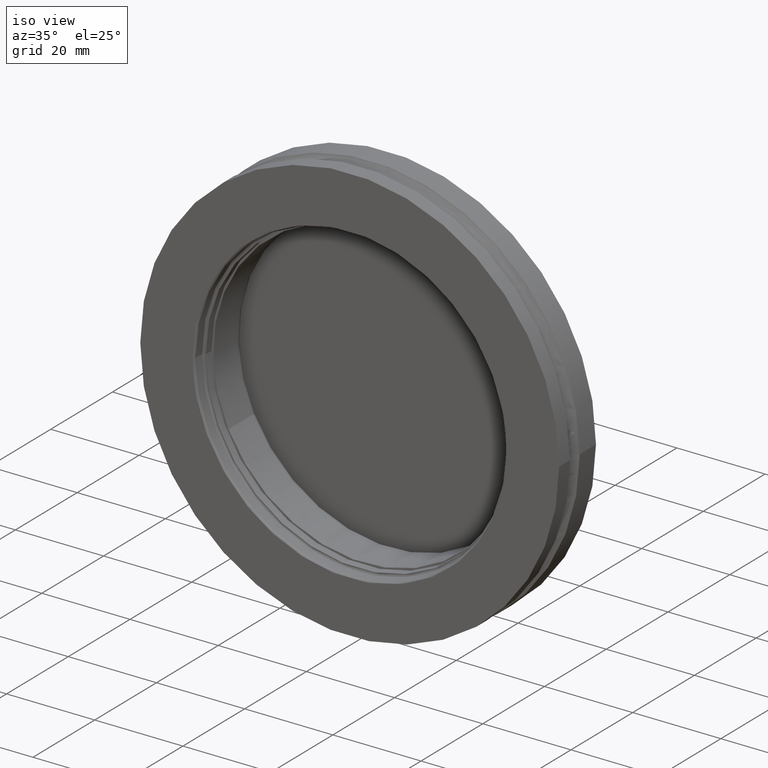
[diagram: clean part render]
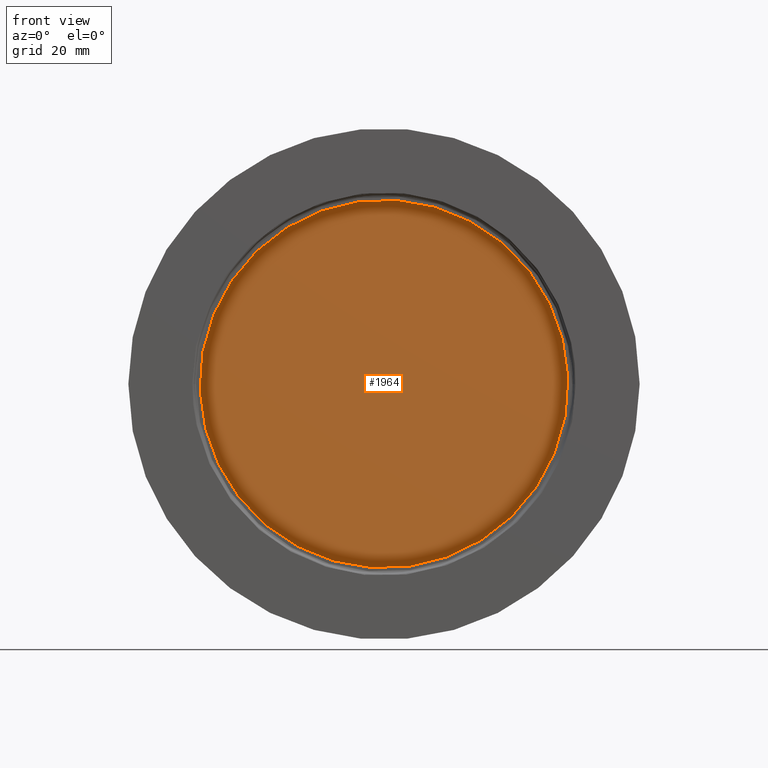
[diagram: tour spotlight — one face highlighted and labeled with its STEP entity id]
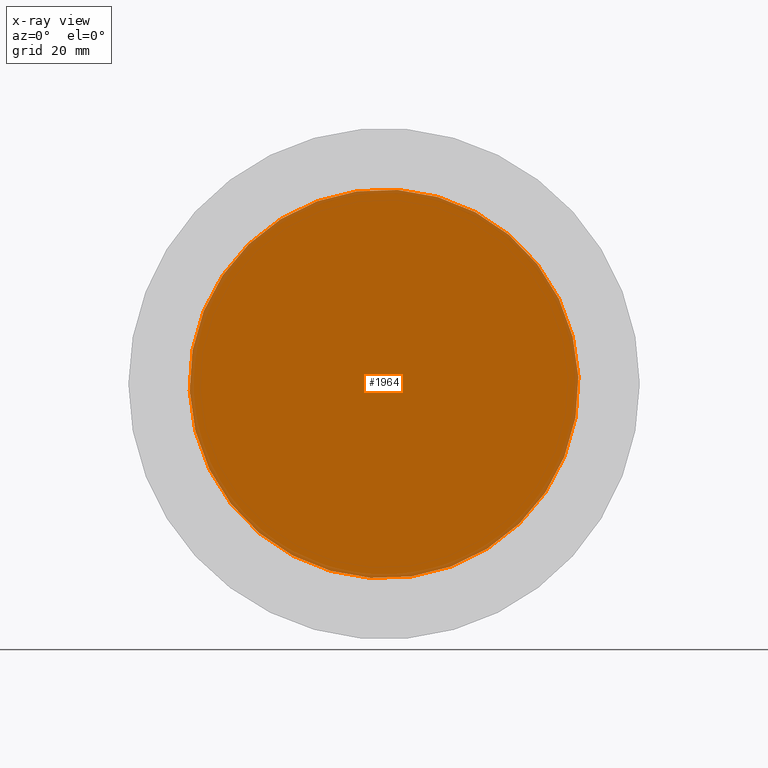
[diagram: x-ray of the same camera — body ghosted, this tour face saturated]
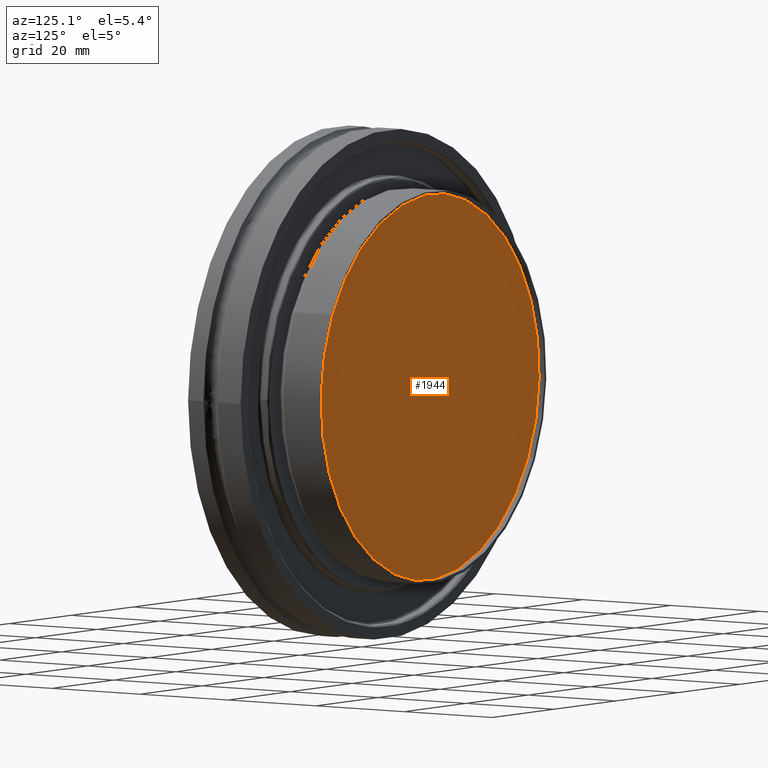
[diagram: tour spotlight — one face highlighted and labeled with its STEP entity id]
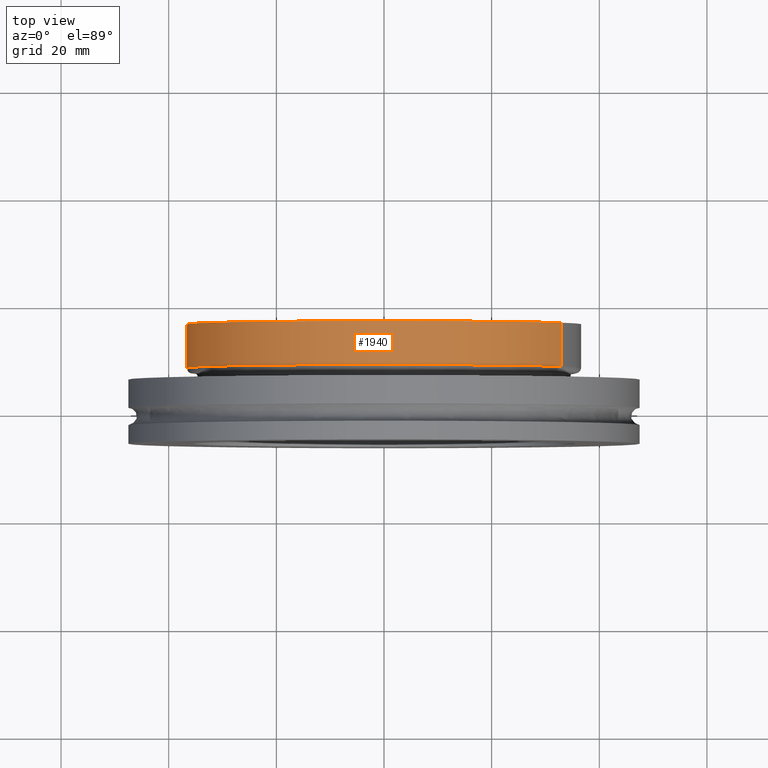
[diagram: tour spotlight — one face highlighted and labeled with its STEP entity id]
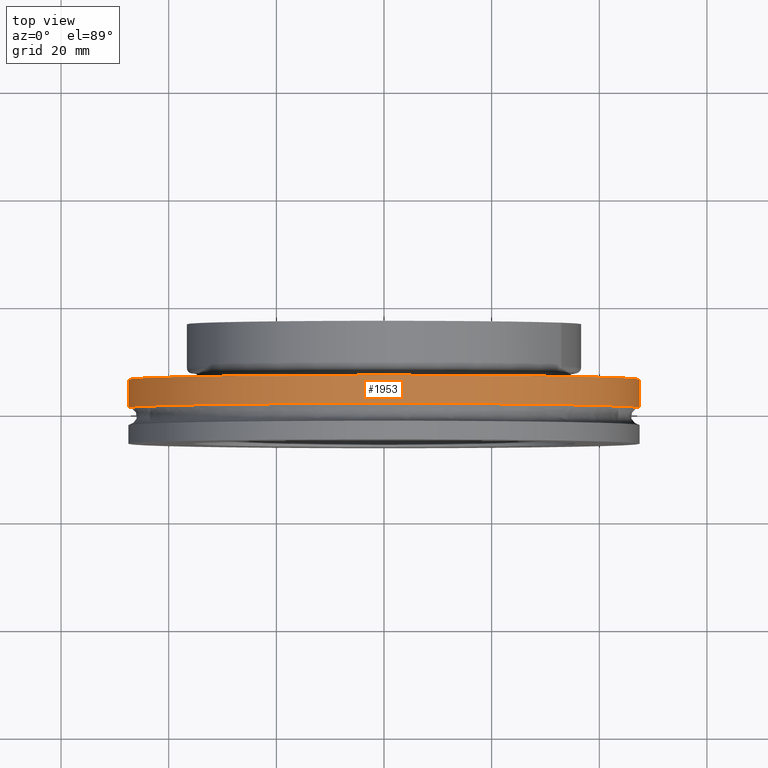
[diagram: tour spotlight — one face highlighted and labeled with its STEP entity id]
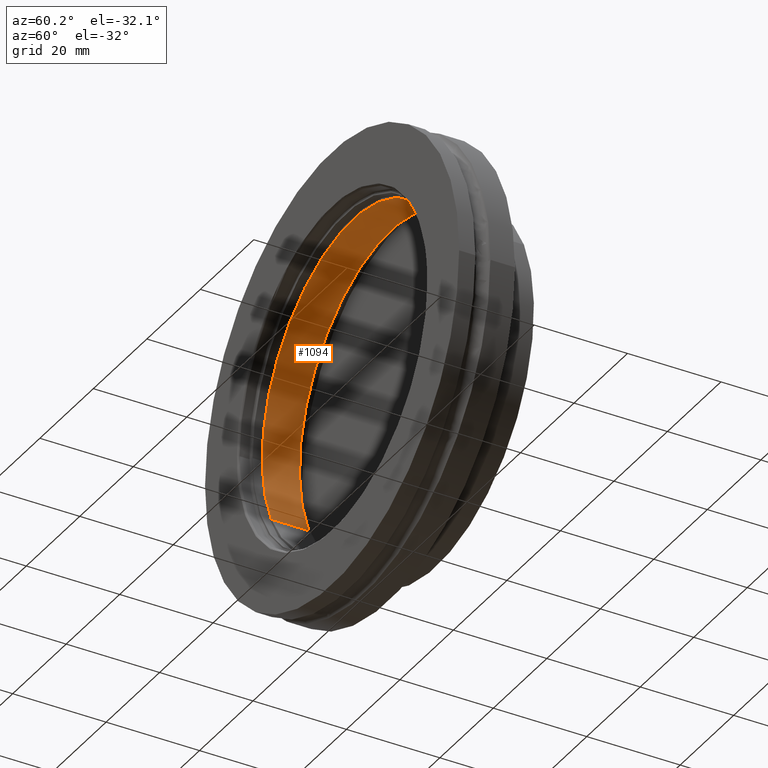
[diagram: tour spotlight — one face highlighted and labeled with its STEP entity id]
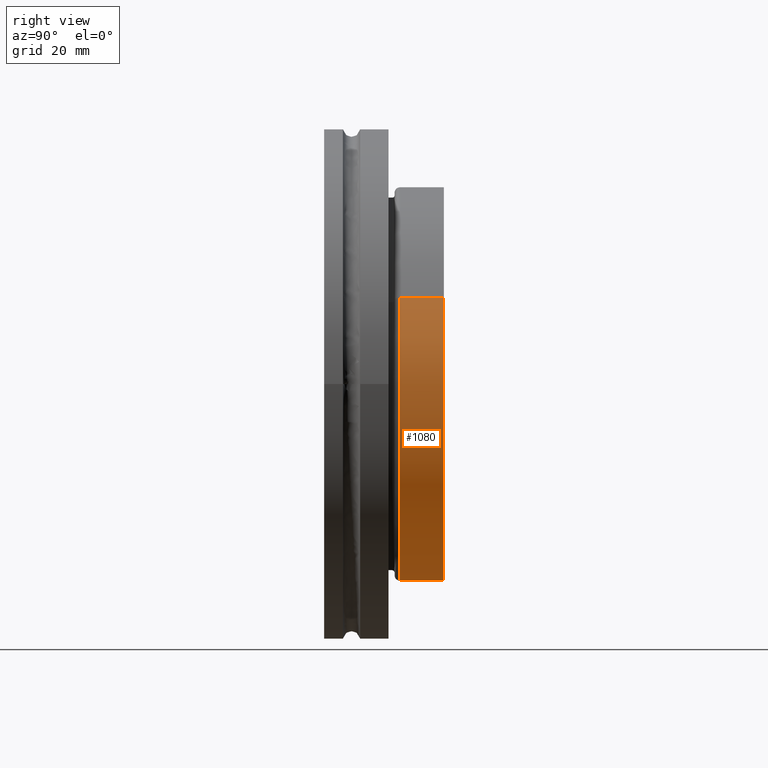
[diagram: tour spotlight — one face highlighted and labeled with its STEP entity id]
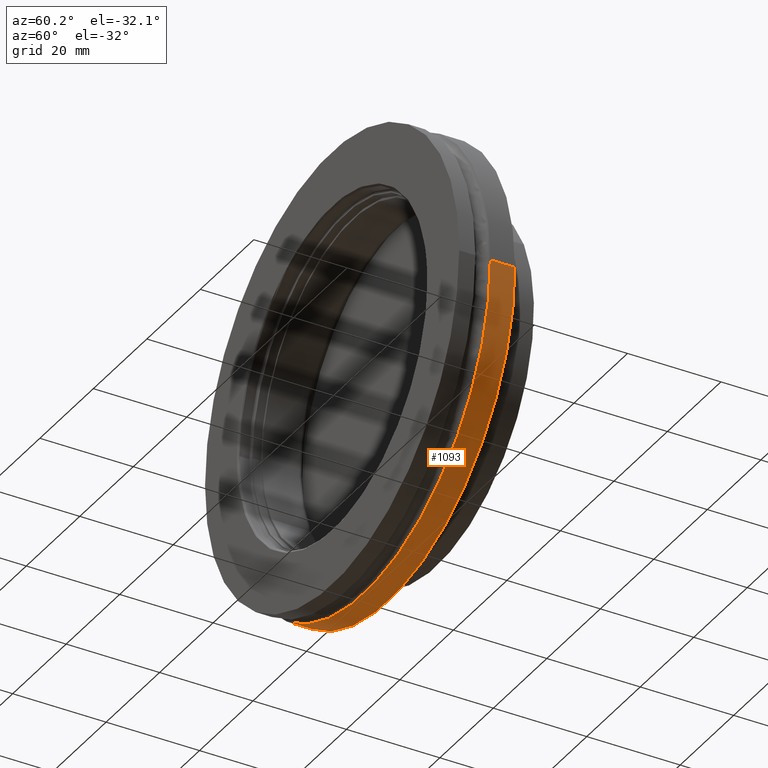
[diagram: tour spotlight — one face highlighted and labeled with its STEP entity id]
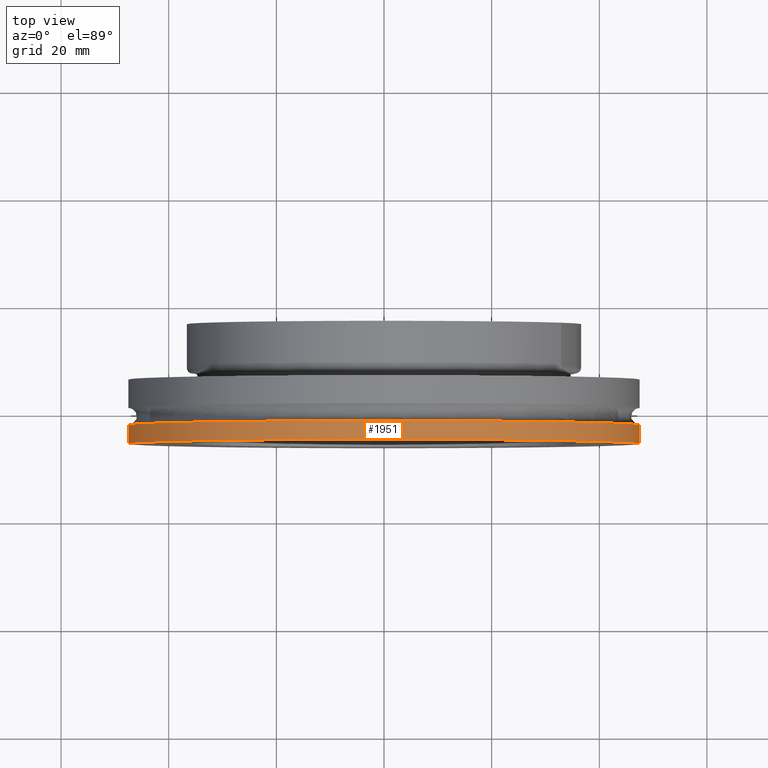
[diagram: tour spotlight — one face highlighted and labeled with its STEP entity id]
A machine part: a face-by-face anatomy tour. The part has 55 B-rep faces; the first image is the clean iso view, then the 8 largest visible faces are spotlighted one at a time (largest first), each with its STEP entity span.

Face 1 — front view, entity #1964. An x-ray twin of the same camera follows (body ghosted, this face saturated) — the face is partly hidden behind the body. In plain terms, the highlighted planar face has unit normal (0, 1, -0).
Definition (entity closure, byte-faithful):
#31 = AXIS2_PLACEMENT_3D ( 'NONE', #1228, #1223, #1222 ) ;
#72 = FACE_OUTER_BOUND ( 'NONE', #510, .T. ) ;
#226 = CIRCLE ( 'NONE', #616, 1.422500000000000300 ) ;
#263 = CIRCLE ( 'NONE', #649, 1.422500000000000300 ) ;
#415 = ORIENTED_EDGE ( 'NONE', *, *, #701, .F. ) ;
#416 = ORIENTED_EDGE ( 'NONE', *, *, #655, .F. ) ;
#510 = EDGE_LOOP ( 'NONE', ( #415, #416 ) ) ;
#616 = AXIS2_PLACEMENT_3D ( 'NONE', #1525, #1643, #1524 ) ;
#649 = AXIS2_PLACEMENT_3D ( 'NONE', #781, #780, #779 ) ;
#655 = EDGE_CURVE ( 'NONE', #1993, #1992, #263, .T. ) ;
#701 = EDGE_CURVE ( 'NONE', #1992, #1993, #226, .T. ) ;
#779 = DIRECTION ( 'NONE',  ( 0.8985227839722367300, -9.602277657870869900E-017, 0.4389268807931240900 ) ) ;
#780 = DIRECTION ( 'NONE',  ( 1.224646799147349000E-016, 1.000000000000000000, -7.482242047915947100E-032 ) ) ;
#781 = CARTESIAN_POINT ( 'NONE',  ( 5.424866172229440700E-018, 0.3400000000000028000, 1.708443747142269700E-019 ) ) ;
#1185 = CARTESIAN_POINT ( 'NONE',  ( 1.278148660200507000, 0.3400000000000026300, 0.6243734879282190100 ) ) ;
#1186 = CARTESIAN_POINT ( 'NONE',  ( -1.278148660200506800, 0.3400000000000029100, -0.6243734879282190100 ) ) ;
#1222 = DIRECTION ( 'NONE',  ( 0.9997490967553430700, -1.224339531291883900E-016, 0.02239963251652742800 ) ) ;
#1223 = DIRECTION ( 'NONE',  ( 1.224646799147348800E-016, 1.000000000000000000, -7.511126783110222000E-032 ) ) ;
#1225 = PLANE ( 'NONE',  #31 ) ;
#1228 = CARTESIAN_POINT ( 'NONE',  ( 5.424866172229440700E-018, 0.3400000000000028000, 1.708443747142269700E-019 ) ) ;
#1524 = DIRECTION ( 'NONE',  ( 0.8985227839722367300, -9.602277657870869900E-017, 0.4389268807931240900 ) ) ;
#1525 = CARTESIAN_POINT ( 'NONE',  ( 5.424866172229440700E-018, 0.3400000000000028000, 1.708443747142269700E-019 ) ) ;
#1643 = DIRECTION ( 'NONE',  ( 1.224646799147349000E-016, 1.000000000000000000, -7.482242047915947100E-032 ) ) ;
#1964 = ADVANCED_FACE ( 'NONE', ( #72 ), #1225, .F. ) ;
#1992 = VERTEX_POINT ( 'NONE', #1186 ) ;
#1993 = VERTEX_POINT ( 'NONE', #1185 ) ;

Face 2 — auxiliary view, entity #1944. In plain terms, the highlighted planar face has unit normal (0, 1, -0).
Definition (entity closure, byte-faithful):
#54 = AXIS2_PLACEMENT_3D ( 'NONE', #1433, #1419, #1418 ) ;
#98 = FACE_OUTER_BOUND ( 'NONE', #450, .T. ) ;
#162 = CIRCLE ( 'NONE', #591, 1.422500000000000300 ) ;
#176 = CIRCLE ( 'NONE', #598, 1.422500000000000300 ) ;
#382 = ORIENTED_EDGE ( 'NONE', *, *, #736, .T. ) ;
#383 = ORIENTED_EDGE ( 'NONE', *, *, #744, .T. ) ;
#450 = EDGE_LOOP ( 'NONE', ( #382, #383 ) ) ;
#470 = VERTEX_POINT ( 'NONE', #941 ) ;
#591 = AXIS2_PLACEMENT_3D ( 'NONE', #1904, #1903, #1902 ) ;
#598 = AXIS2_PLACEMENT_3D ( 'NONE', #1923, #1922, #1921 ) ;
#736 = EDGE_CURVE ( 'NONE', #2004, #470, #176, .T. ) ;
#744 = EDGE_CURVE ( 'NONE', #470, #2004, #162, .T. ) ;
#941 = CARTESIAN_POINT ( 'NONE',  ( 1.278148660200507000, 0.5900000000000024100, 0.6243734879282190100 ) ) ;
#1174 = CARTESIAN_POINT ( 'NONE',  ( -1.278148660200506800, 0.5900000000000027400, -0.6243734879282190100 ) ) ;
#1418 = DIRECTION ( 'NONE',  ( 0.9997490967553430700, -1.224339531291883900E-016, 0.02239963251652742800 ) ) ;
#1419 = DIRECTION ( 'NONE',  ( 1.224646799147348800E-016, 1.000000000000000000, -7.511126783110222000E-032 ) ) ;
#1424 = PLANE ( 'NONE',  #54 ) ;
#1433 = CARTESIAN_POINT ( 'NONE',  ( 3.604103615091316700E-017, 0.5900000000000027400, 1.708443747142080000E-019 ) ) ;
#1902 = DIRECTION ( 'NONE',  ( 0.8985227839722367300, -9.602277657870869900E-017, 0.4389268807931240900 ) ) ;
#1903 = DIRECTION ( 'NONE',  ( 1.224646799147349000E-016, 1.000000000000000000, -7.482242047915947100E-032 ) ) ;
#1904 = CARTESIAN_POINT ( 'NONE',  ( 3.604103615091314200E-017, 0.5900000000000026300, 1.708443747142080000E-019 ) ) ;
#1921 = DIRECTION ( 'NONE',  ( 0.8985227839722367300, -9.602277657870869900E-017, 0.4389268807931240900 ) ) ;
#1922 = DIRECTION ( 'NONE',  ( 1.224646799147349000E-016, 1.000000000000000000, -7.482242047915947100E-032 ) ) ;
#1923 = CARTESIAN_POINT ( 'NONE',  ( 3.604103615091314200E-017, 0.5900000000000026300, 1.708443747142080000E-019 ) ) ;
#1944 = ADVANCED_FACE ( 'NONE', ( #98 ), #1424, .T. ) ;
#2004 = VERTEX_POINT ( 'NONE', #1174 ) ;

Face 3 — top view, entity #1940. In plain terms, the highlighted cylindrical surface (partial cylindrical patch) has radius 36.6395 mm, axis along (-0, -1, 0).
Definition (entity closure, byte-faithful):
#27 = AXIS2_PLACEMENT_3D ( 'NONE', #1438, #1439, #1443 ) ;
#104 = CYLINDRICAL_SURFACE ( 'NONE', #27, 1.442500000000000300 ) ;
#116 = FACE_OUTER_BOUND ( 'NONE', #458, .T. ) ;
#160 = CIRCLE ( 'NONE', #589, 1.442500000000000300 ) ;
#161 = CIRCLE ( 'NONE', #590, 1.442500000000000300 ) ;
#177 = VECTOR ( 'NONE', #1930, 39.37007874015748100 ) ;
#179 = VECTOR ( 'NONE', #1298, 39.37007874015748100 ) ;
#180 = LINE ( 'NONE', #1932, #177 ) ;
#182 = LINE ( 'NONE', #1131, #179 ) ;
#365 = ORIENTED_EDGE ( 'NONE', *, *, #732, .F. ) ;
#366 = ORIENTED_EDGE ( 'NONE', *, *, #745, .T. ) ;
#367 = ORIENTED_EDGE ( 'NONE', *, *, #733, .T. ) ;
#368 = ORIENTED_EDGE ( 'NONE', *, *, #746, .F. ) ;
#458 = EDGE_LOOP ( 'NONE', ( #365, #366, #367, #368 ) ) ;
#589 = AXIS2_PLACEMENT_3D ( 'NONE', #1897, #1896, #1895 ) ;
#590 = AXIS2_PLACEMENT_3D ( 'NONE', #1900, #1899, #1898 ) ;
#732 = EDGE_CURVE ( 'NONE', #1990, #2014, #182, .T. ) ;
#733 = EDGE_CURVE ( 'NONE', #1997, #1996, #180, .T. ) ;
#745 = EDGE_CURVE ( 'NONE', #1990, #1997, #161, .T. ) ;
#746 = EDGE_CURVE ( 'NONE', #2014, #1996, #160, .T. ) ;
#1131 = CARTESIAN_POINT ( 'NONE',  ( 1.296119115879951400, -2.674999999999995800, 0.6331520255440814500 ) ) ;
#1164 = CARTESIAN_POINT ( 'NONE',  ( 1.296119115879951700, 0.3200000000000030600, 0.6331520255440814500 ) ) ;
#1181 = CARTESIAN_POINT ( 'NONE',  ( -1.296119115879951700, 0.6400000000000031200, -0.6331520255440815600 ) ) ;
#1182 = CARTESIAN_POINT ( 'NONE',  ( -1.296119115879951700, 0.3200000000000033400, -0.6331520255440815600 ) ) ;
#1188 = CARTESIAN_POINT ( 'NONE',  ( 1.296119115879951700, 0.6400000000000029000, 0.6331520255440814500 ) ) ;
#1298 = DIRECTION ( 'NONE',  ( -1.224646799147349000E-016, -1.000000000000000000, 7.482242047915948200E-032 ) ) ;
#1438 = CARTESIAN_POINT ( 'NONE',  ( -3.638061437706961500E-016, -2.674999999999995800, 1.708443747144506400E-019 ) ) ;
#1439 = DIRECTION ( 'NONE',  ( -1.224646799147349000E-016, -1.000000000000000000, 7.482242047915948200E-032 ) ) ;
#1443 = DIRECTION ( 'NONE',  ( -0.8985227839722366200, 0.0000000000000000000, -0.4389268807931240300 ) ) ;
#1895 = DIRECTION ( 'NONE',  ( -0.8985227839722366200, 9.469143825526040200E-017, -0.4389268807931240300 ) ) ;
#1896 = DIRECTION ( 'NONE',  ( -1.224646799147349000E-016, -1.000000000000000000, 7.482242047915948200E-032 ) ) ;
#1897 = CARTESIAN_POINT ( 'NONE',  ( 2.975572573934792800E-018, 0.3200000000000032300, 1.708443747142269700E-019 ) ) ;
#1898 = DIRECTION ( 'NONE',  ( -0.8985227839722366200, 9.469143825526040200E-017, -0.4389268807931240300 ) ) ;
#1899 = DIRECTION ( 'NONE',  ( -1.224646799147349000E-016, -1.000000000000000000, 7.482242047915948200E-032 ) ) ;
#1900 = CARTESIAN_POINT ( 'NONE',  ( 4.216427014664993800E-017, 0.6400000000000030100, 1.708443747142042200E-019 ) ) ;
#1930 = DIRECTION ( 'NONE',  ( -1.224646799147349000E-016, -1.000000000000000000, 7.482242047915948200E-032 ) ) ;
#1932 = CARTESIAN_POINT ( 'NONE',  ( -1.296119115879951900, -2.674999999999995800, -0.6331520255440815600 ) ) ;
#1940 = ADVANCED_FACE ( 'NONE', ( #116 ), #104, .T. ) ;
#1990 = VERTEX_POINT ( 'NONE', #1188 ) ;
#1996 = VERTEX_POINT ( 'NONE', #1182 ) ;
#1997 = VERTEX_POINT ( 'NONE', #1181 ) ;
#2014 = VERTEX_POINT ( 'NONE', #1164 ) ;

Face 4 — top view, entity #1953. In plain terms, the highlighted cylindrical surface (partial cylindrical patch) has radius 47.498 mm, axis along (0, 1, 0).
Definition (entity closure, byte-faithful):
#51 = AXIS2_PLACEMENT_3D ( 'NONE', #1325, #1348, #1349 ) ;
#82 = CYLINDRICAL_SURFACE ( 'NONE', #51, 1.870000000000000100 ) ;
#83 = FACE_OUTER_BOUND ( 'NONE', #498, .T. ) ;
#200 = VECTOR ( 'NONE', #1462, 39.37007874015748100 ) ;
#202 = LINE ( 'NONE', #1454, #200 ) ;
#203 = VECTOR ( 'NONE', #1422, 39.37007874015748100 ) ;
#206 = LINE ( 'NONE', #1427, #203 ) ;
#271 = CIRCLE ( 'NONE', #660, 1.870000000000000100 ) ;
#274 = CIRCLE ( 'NONE', #661, 1.870000000000000100 ) ;
#308 = ORIENTED_EDGE ( 'NONE', *, *, #714, .F. ) ;
#309 = ORIENTED_EDGE ( 'NONE', *, *, #567, .T. ) ;
#310 = ORIENTED_EDGE ( 'NONE', *, *, #716, .T. ) ;
#311 = ORIENTED_EDGE ( 'NONE', *, *, #568, .T. ) ;
#485 = VERTEX_POINT ( 'NONE', #840 ) ;
#489 = VERTEX_POINT ( 'NONE', #820 ) ;
#498 = EDGE_LOOP ( 'NONE', ( #308, #309, #310, #311 ) ) ;
#567 = EDGE_CURVE ( 'NONE', #489, #485, #274, .T. ) ;
#568 = EDGE_CURVE ( 'NONE', #2015, #2003, #271, .T. ) ;
#660 = AXIS2_PLACEMENT_3D ( 'NONE', #764, #762, #929 ) ;
#661 = AXIS2_PLACEMENT_3D ( 'NONE', #791, #786, #782 ) ;
#714 = EDGE_CURVE ( 'NONE', #489, #2003, #206, .T. ) ;
#716 = EDGE_CURVE ( 'NONE', #485, #2015, #202, .T. ) ;
#762 = DIRECTION ( 'NONE',  ( -0.0000000000000000000, -1.000000000000000000, -0.0000000000000000000 ) ) ;
#764 = CARTESIAN_POINT ( 'NONE',  ( 0.0000000000000000000, 0.2350000000000000100, 0.0000000000000000000 ) ) ;
#782 = DIRECTION ( 'NONE',  ( 1.000000000000000000, 0.0000000000000000000, 0.0000000000000000000 ) ) ;
#786 = DIRECTION ( 'NONE',  ( 0.0000000000000000000, 1.000000000000000000, 0.0000000000000000000 ) ) ;
#791 = CARTESIAN_POINT ( 'NONE',  ( 0.0000000000000000000, 0.02799999999999994900, 0.0000000000000000000 ) ) ;
#820 = CARTESIAN_POINT ( 'NONE',  ( -1.870000000000000100, 0.02799999999999994900, -2.290089514405550600E-016 ) ) ;
#840 = CARTESIAN_POINT ( 'NONE',  ( 1.870000000000000100, 0.02799999999999994900, 0.0000000000000000000 ) ) ;
#929 = DIRECTION ( 'NONE',  ( 1.000000000000000000, 0.0000000000000000000, 0.0000000000000000000 ) ) ;
#1163 = CARTESIAN_POINT ( 'NONE',  ( 1.870000000000000100, 0.2350000000000000100, 0.0000000000000000000 ) ) ;
#1175 = CARTESIAN_POINT ( 'NONE',  ( -1.870000000000000100, 0.2350000000000000100, -2.290089514405550600E-016 ) ) ;
#1325 = CARTESIAN_POINT ( 'NONE',  ( 0.0000000000000000000, 0.2350000000000000100, 0.0000000000000000000 ) ) ;
#1348 = DIRECTION ( 'NONE',  ( 0.0000000000000000000, 1.000000000000000000, 0.0000000000000000000 ) ) ;
#1349 = DIRECTION ( 'NONE',  ( 1.000000000000000000, 0.0000000000000000000, 0.0000000000000000000 ) ) ;
#1422 = DIRECTION ( 'NONE',  ( 0.0000000000000000000, 1.000000000000000000, 0.0000000000000000000 ) ) ;
#1427 = CARTESIAN_POINT ( 'NONE',  ( -1.870000000000000100, 0.2350000000000000100, -2.290089514405550600E-016 ) ) ;
#1454 = CARTESIAN_POINT ( 'NONE',  ( 1.870000000000000100, 0.2350000000000000100, 0.0000000000000000000 ) ) ;
#1462 = DIRECTION ( 'NONE',  ( 0.0000000000000000000, 1.000000000000000000, 0.0000000000000000000 ) ) ;
#1953 = ADVANCED_FACE ( 'NONE', ( #83 ), #82, .T. ) ;
#2003 = VERTEX_POINT ( 'NONE', #1175 ) ;
#2015 = VERTEX_POINT ( 'NONE', #1163 ) ;

Face 5 — auxiliary view, entity #1094. In plain terms, the highlighted cylindrical surface (partial cylindrical patch) has radius 34.163 mm, axis along (-0, -1, 0).
Definition (entity closure, byte-faithful):
#30 = AXIS2_PLACEMENT_3D ( 'NONE', #1535, #1537, #1539 ) ;
#124 = CYLINDRICAL_SURFACE ( 'NONE', #30, 1.345000000000000000 ) ;
#135 = FACE_OUTER_BOUND ( 'NONE', #444, .T. ) ;
#234 = VECTOR ( 'NONE', #2093, 39.37007874015748100 ) ;
#237 = LINE ( 'NONE', #2078, #234 ) ;
#238 = VECTOR ( 'NONE', #2094, 39.37007874015748100 ) ;
#240 = LINE ( 'NONE', #2086, #238 ) ;
#241 = CIRCLE ( 'NONE', #625, 1.345000000000000000 ) ;
#244 = CIRCLE ( 'NONE', #626, 1.345000000000000000 ) ;
#444 = EDGE_LOOP ( 'NONE', ( #554, #555, #556, #557 ) ) ;
#554 = ORIENTED_EDGE ( 'NONE', *, *, #689, .F. ) ;
#555 = ORIENTED_EDGE ( 'NONE', *, *, #690, .T. ) ;
#556 = ORIENTED_EDGE ( 'NONE', *, *, #691, .T. ) ;
#557 = ORIENTED_EDGE ( 'NONE', *, *, #692, .F. ) ;
#625 = AXIS2_PLACEMENT_3D ( 'NONE', #2075, #2074, #2072 ) ;
#626 = AXIS2_PLACEMENT_3D ( 'NONE', #2083, #2082, #2081 ) ;
#689 = EDGE_CURVE ( 'NONE', #1980, #1983, #244, .T. ) ;
#690 = EDGE_CURVE ( 'NONE', #1980, #1987, #240, .T. ) ;
#691 = EDGE_CURVE ( 'NONE', #1987, #1988, #241, .T. ) ;
#692 = EDGE_CURVE ( 'NONE', #1983, #1988, #237, .T. ) ;
#1094 = ADVANCED_FACE ( 'NONE', ( #135 ), #124, .F. ) ;
#1190 = CARTESIAN_POINT ( 'NONE',  ( -1.208513144442658200, -0.05499999999999687800, -0.5903566546667518000 ) ) ;
#1191 = CARTESIAN_POINT ( 'NONE',  ( 1.208513144442658200, -0.05499999999999716900, 0.5903566546667516900 ) ) ;
#1195 = CARTESIAN_POINT ( 'NONE',  ( -1.208513144442658400, 0.2600000000000034500, -0.5903566546667519100 ) ) ;
#1206 = CARTESIAN_POINT ( 'NONE',  ( 1.208513144442658400, 0.2600000000000032300, 0.5903566546667518000 ) ) ;
#1535 = CARTESIAN_POINT ( 'NONE',  ( -3.638061437706961500E-016, -2.674999999999995800, 1.708443747144506400E-019 ) ) ;
#1537 = DIRECTION ( 'NONE',  ( -1.224646799147349000E-016, -1.000000000000000000, 7.482242047915948200E-032 ) ) ;
#1539 = DIRECTION ( 'NONE',  ( -0.8985227839722366200, 0.0000000000000000000, -0.4389268807931240300 ) ) ;
#1980 = VERTEX_POINT ( 'NONE', #1206 ) ;
#1983 = VERTEX_POINT ( 'NONE', #1195 ) ;
#1987 = VERTEX_POINT ( 'NONE', #1191 ) ;
#1988 = VERTEX_POINT ( 'NONE', #1190 ) ;
#2072 = DIRECTION ( 'NONE',  ( -1.000000000000000000, 1.205973789024651500E-016, 0.0000000000000000000 ) ) ;
#2074 = DIRECTION ( 'NONE',  ( -1.224646799147352200E-016, -1.000000000000000000, 0.0000000000000000000 ) ) ;
#2075 = CARTESIAN_POINT ( 'NONE',  ( -6.735557395310073400E-018, -0.05499999999999702300, -0.0000000000000000000 ) ) ;
#2078 = CARTESIAN_POINT ( 'NONE',  ( -1.208513144442658700, -2.674999999999995800, -0.5903566546667518000 ) ) ;
#2081 = DIRECTION ( 'NONE',  ( -0.8985227839722366200, 1.015556874968127600E-016, -0.4389268807931240300 ) ) ;
#2082 = DIRECTION ( 'NONE',  ( -1.224646799147349000E-016, -1.000000000000000000, 7.482242047915948200E-032 ) ) ;
#2083 = CARTESIAN_POINT ( 'NONE',  ( -4.372308220949285500E-018, 0.2600000000000033400, 1.708443747142307500E-019 ) ) ;
#2086 = CARTESIAN_POINT ( 'NONE',  ( 1.208513144442657800, -2.674999999999995800, 0.5903566546667516900 ) ) ;
#2093 = DIRECTION ( 'NONE',  ( -1.224646799147349000E-016, -1.000000000000000000, 7.482242047915948200E-032 ) ) ;
#2094 = DIRECTION ( 'NONE',  ( -1.224646799147349000E-016, -1.000000000000000000, 7.482242047915948200E-032 ) ) ;

Face 6 — right view, entity #1080. In plain terms, the highlighted cylindrical surface (partial cylindrical patch) has radius 36.6395 mm, axis along (-0, -1, 0).
Definition (entity closure, byte-faithful):
#148 = CYLINDRICAL_SURFACE ( 'NONE', #579, 1.442500000000000300 ) ;
#149 = FACE_OUTER_BOUND ( 'NONE', #457, .T. ) ;
#177 = VECTOR ( 'NONE', #1930, 39.37007874015748100 ) ;
#179 = VECTOR ( 'NONE', #1298, 39.37007874015748100 ) ;
#180 = LINE ( 'NONE', #1932, #177 ) ;
#182 = LINE ( 'NONE', #1131, #179 ) ;
#183 = CIRCLE ( 'NONE', #600, 1.442500000000000300 ) ;
#188 = CIRCLE ( 'NONE', #604, 1.442500000000000300 ) ;
#340 = ORIENTED_EDGE ( 'NONE', *, *, #731, .T. ) ;
#342 = ORIENTED_EDGE ( 'NONE', *, *, #732, .T. ) ;
#343 = ORIENTED_EDGE ( 'NONE', *, *, #727, .F. ) ;
#344 = ORIENTED_EDGE ( 'NONE', *, *, #733, .F. ) ;
#457 = EDGE_LOOP ( 'NONE', ( #340, #342, #343, #344 ) ) ;
#579 = AXIS2_PLACEMENT_3D ( 'NONE', #1626, #1629, #1630 ) ;
#600 = AXIS2_PLACEMENT_3D ( 'NONE', #1130, #1936, #1935 ) ;
#604 = AXIS2_PLACEMENT_3D ( 'NONE', #1307, #1306, #1299 ) ;
#727 = EDGE_CURVE ( 'NONE', #1996, #2014, #188, .T. ) ;
#731 = EDGE_CURVE ( 'NONE', #1997, #1990, #183, .T. ) ;
#732 = EDGE_CURVE ( 'NONE', #1990, #2014, #182, .T. ) ;
#733 = EDGE_CURVE ( 'NONE', #1997, #1996, #180, .T. ) ;
#1080 = ADVANCED_FACE ( 'NONE', ( #149 ), #148, .T. ) ;
#1130 = CARTESIAN_POINT ( 'NONE',  ( 4.216427014664993800E-017, 0.6400000000000030100, 1.708443747142042200E-019 ) ) ;
#1131 = CARTESIAN_POINT ( 'NONE',  ( 1.296119115879951400, -2.674999999999995800, 0.6331520255440814500 ) ) ;
#1164 = CARTESIAN_POINT ( 'NONE',  ( 1.296119115879951700, 0.3200000000000030600, 0.6331520255440814500 ) ) ;
#1181 = CARTESIAN_POINT ( 'NONE',  ( -1.296119115879951700, 0.6400000000000031200, -0.6331520255440815600 ) ) ;
#1182 = CARTESIAN_POINT ( 'NONE',  ( -1.296119115879951700, 0.3200000000000033400, -0.6331520255440815600 ) ) ;
#1188 = CARTESIAN_POINT ( 'NONE',  ( 1.296119115879951700, 0.6400000000000029000, 0.6331520255440814500 ) ) ;
#1298 = DIRECTION ( 'NONE',  ( -1.224646799147349000E-016, -1.000000000000000000, 7.482242047915948200E-032 ) ) ;
#1299 = DIRECTION ( 'NONE',  ( -0.8985227839722366200, 9.469143825526040200E-017, -0.4389268807931240300 ) ) ;
#1306 = DIRECTION ( 'NONE',  ( -1.224646799147349000E-016, -1.000000000000000000, 7.482242047915948200E-032 ) ) ;
#1307 = CARTESIAN_POINT ( 'NONE',  ( 2.975572573934792800E-018, 0.3200000000000032300, 1.708443747142269700E-019 ) ) ;
#1626 = CARTESIAN_POINT ( 'NONE',  ( -3.638061437706961500E-016, -2.674999999999995800, 1.708443747144506400E-019 ) ) ;
#1629 = DIRECTION ( 'NONE',  ( -1.224646799147349000E-016, -1.000000000000000000, 7.482242047915948200E-032 ) ) ;
#1630 = DIRECTION ( 'NONE',  ( -0.8985227839722366200, 0.0000000000000000000, -0.4389268807931240300 ) ) ;
#1930 = DIRECTION ( 'NONE',  ( -1.224646799147349000E-016, -1.000000000000000000, 7.482242047915948200E-032 ) ) ;
#1932 = CARTESIAN_POINT ( 'NONE',  ( -1.296119115879951900, -2.674999999999995800, -0.6331520255440815600 ) ) ;
#1935 = DIRECTION ( 'NONE',  ( -0.8985227839722366200, 9.469143825526040200E-017, -0.4389268807931240300 ) ) ;
#1936 = DIRECTION ( 'NONE',  ( -1.224646799147349000E-016, -1.000000000000000000, 7.482242047915948200E-032 ) ) ;
#1990 = VERTEX_POINT ( 'NONE', #1188 ) ;
#1996 = VERTEX_POINT ( 'NONE', #1182 ) ;
#1997 = VERTEX_POINT ( 'NONE', #1181 ) ;
#2014 = VERTEX_POINT ( 'NONE', #1164 ) ;

Face 7 — auxiliary view, entity #1093. In plain terms, the highlighted cylindrical surface (partial cylindrical patch) has radius 47.498 mm, axis along (0, 1, 0).
Definition (entity closure, byte-faithful):
#47 = AXIS2_PLACEMENT_3D ( 'NONE', #1538, #1540, #1542 ) ;
#126 = CYLINDRICAL_SURFACE ( 'NONE', #47, 1.870000000000000100 ) ;
#137 = FACE_OUTER_BOUND ( 'NONE', #435, .T. ) ;
#144 = ORIENTED_EDGE ( 'NONE', *, *, #716, .F. ) ;
#147 = ORIENTED_EDGE ( 'NONE', *, *, #673, .T. ) ;
#200 = VECTOR ( 'NONE', #1462, 39.37007874015748100 ) ;
#202 = LINE ( 'NONE', #1454, #200 ) ;
#203 = VECTOR ( 'NONE', #1422, 39.37007874015748100 ) ;
#204 = CIRCLE ( 'NONE', #611, 1.870000000000000100 ) ;
#206 = LINE ( 'NONE', #1427, #203 ) ;
#253 = CIRCLE ( 'NONE', #639, 1.870000000000000100 ) ;
#381 = ORIENTED_EDGE ( 'NONE', *, *, #714, .T. ) ;
#391 = ORIENTED_EDGE ( 'NONE', *, *, #715, .T. ) ;
#435 = EDGE_LOOP ( 'NONE', ( #147, #381, #391, #144 ) ) ;
#485 = VERTEX_POINT ( 'NONE', #840 ) ;
#489 = VERTEX_POINT ( 'NONE', #820 ) ;
#611 = AXIS2_PLACEMENT_3D ( 'NONE', #1414, #1405, #1407 ) ;
#639 = AXIS2_PLACEMENT_3D ( 'NONE', #2482, #2481, #2480 ) ;
#673 = EDGE_CURVE ( 'NONE', #485, #489, #253, .T. ) ;
#714 = EDGE_CURVE ( 'NONE', #489, #2003, #206, .T. ) ;
#715 = EDGE_CURVE ( 'NONE', #2003, #2015, #204, .T. ) ;
#716 = EDGE_CURVE ( 'NONE', #485, #2015, #202, .T. ) ;
#820 = CARTESIAN_POINT ( 'NONE',  ( -1.870000000000000100, 0.02799999999999994900, -2.290089514405550600E-016 ) ) ;
#840 = CARTESIAN_POINT ( 'NONE',  ( 1.870000000000000100, 0.02799999999999994900, 0.0000000000000000000 ) ) ;
#1093 = ADVANCED_FACE ( 'NONE', ( #137 ), #126, .T. ) ;
#1163 = CARTESIAN_POINT ( 'NONE',  ( 1.870000000000000100, 0.2350000000000000100, 0.0000000000000000000 ) ) ;
#1175 = CARTESIAN_POINT ( 'NONE',  ( -1.870000000000000100, 0.2350000000000000100, -2.290089514405550600E-016 ) ) ;
#1405 = DIRECTION ( 'NONE',  ( -0.0000000000000000000, -1.000000000000000000, -0.0000000000000000000 ) ) ;
#1407 = DIRECTION ( 'NONE',  ( 1.000000000000000000, 0.0000000000000000000, 0.0000000000000000000 ) ) ;
#1414 = CARTESIAN_POINT ( 'NONE',  ( 0.0000000000000000000, 0.2350000000000000100, 0.0000000000000000000 ) ) ;
#1422 = DIRECTION ( 'NONE',  ( 0.0000000000000000000, 1.000000000000000000, 0.0000000000000000000 ) ) ;
#1427 = CARTESIAN_POINT ( 'NONE',  ( -1.870000000000000100, 0.2350000000000000100, -2.290089514405550600E-016 ) ) ;
#1454 = CARTESIAN_POINT ( 'NONE',  ( 1.870000000000000100, 0.2350000000000000100, 0.0000000000000000000 ) ) ;
#1462 = DIRECTION ( 'NONE',  ( 0.0000000000000000000, 1.000000000000000000, 0.0000000000000000000 ) ) ;
#1538 = CARTESIAN_POINT ( 'NONE',  ( 0.0000000000000000000, 0.2350000000000000100, 0.0000000000000000000 ) ) ;
#1540 = DIRECTION ( 'NONE',  ( 0.0000000000000000000, 1.000000000000000000, 0.0000000000000000000 ) ) ;
#1542 = DIRECTION ( 'NONE',  ( 1.000000000000000000, 0.0000000000000000000, 0.0000000000000000000 ) ) ;
#2003 = VERTEX_POINT ( 'NONE', #1175 ) ;
#2015 = VERTEX_POINT ( 'NONE', #1163 ) ;
#2480 = DIRECTION ( 'NONE',  ( 1.000000000000000000, 0.0000000000000000000, 0.0000000000000000000 ) ) ;
#2481 = DIRECTION ( 'NONE',  ( 0.0000000000000000000, 1.000000000000000000, 0.0000000000000000000 ) ) ;
#2482 = CARTESIAN_POINT ( 'NONE',  ( 0.0000000000000000000, 0.02799999999999994900, 0.0000000000000000000 ) ) ;

Face 8 — top view, entity #1951. In plain terms, the highlighted cylindrical surface (partial cylindrical patch) has radius 47.498 mm, axis along (0, 1, 0).
Definition (entity closure, byte-faithful):
#37 = AXIS2_PLACEMENT_3D ( 'NONE', #1352, #1353, #1358 ) ;
#86 = CYLINDRICAL_SURFACE ( 'NONE', #37, 1.870000000000000100 ) ;
#90 = FACE_OUTER_BOUND ( 'NONE', #493, .T. ) ;
#195 = VECTOR ( 'NONE', #1385, 39.37007874015748100 ) ;
#197 = VECTOR ( 'NONE', #1426, 39.37007874015748100 ) ;
#198 = LINE ( 'NONE', #1390, #195 ) ;
#199 = LINE ( 'NONE', #1415, #197 ) ;
#273 = CIRCLE ( 'NONE', #665, 1.870000000000000300 ) ;
#275 = CIRCLE ( 'NONE', #666, 1.870000000000000100 ) ;
#299 = ORIENTED_EDGE ( 'NONE', *, *, #718, .F. ) ;
#301 = ORIENTED_EDGE ( 'NONE', *, *, #564, .T. ) ;
#302 = ORIENTED_EDGE ( 'NONE', *, *, #719, .T. ) ;
#303 = ORIENTED_EDGE ( 'NONE', *, *, #565, .T. ) ;
#493 = EDGE_LOOP ( 'NONE', ( #299, #301, #302, #303 ) ) ;
#564 = EDGE_CURVE ( 'NONE', #1999, #2010, #275, .T. ) ;
#565 = EDGE_CURVE ( 'NONE', #1974, #1973, #273, .T. ) ;
#665 = AXIS2_PLACEMENT_3D ( 'NONE', #807, #803, #806 ) ;
#666 = AXIS2_PLACEMENT_3D ( 'NONE', #815, #813, #816 ) ;
#718 = EDGE_CURVE ( 'NONE', #1999, #1973, #199, .T. ) ;
#719 = EDGE_CURVE ( 'NONE', #2010, #1974, #198, .T. ) ;
#803 = DIRECTION ( 'NONE',  ( 0.0000000000000000000, -1.000000000000000000, 0.0000000000000000000 ) ) ;
#806 = DIRECTION ( 'NONE',  ( -1.000000000000000000, 0.0000000000000000000, 0.0000000000000000000 ) ) ;
#807 = CARTESIAN_POINT ( 'NONE',  ( 0.0000000000000000000, -0.09800000000000005900, 0.0000000000000000000 ) ) ;
#813 = DIRECTION ( 'NONE',  ( 0.0000000000000000000, 1.000000000000000000, 0.0000000000000000000 ) ) ;
#815 = CARTESIAN_POINT ( 'NONE',  ( 0.0000000000000000000, -0.2350000000000000100, 0.0000000000000000000 ) ) ;
#816 = DIRECTION ( 'NONE',  ( 1.000000000000000000, 0.0000000000000000000, 0.0000000000000000000 ) ) ;
#1168 = CARTESIAN_POINT ( 'NONE',  ( 1.870000000000000100, -0.2350000000000000100, 0.0000000000000000000 ) ) ;
#1179 = CARTESIAN_POINT ( 'NONE',  ( -1.870000000000000100, -0.2350000000000000100, -2.290089514405550600E-016 ) ) ;
#1202 = CARTESIAN_POINT ( 'NONE',  ( 1.870000000000000300, -0.09800000000000005900, -2.290089514405550600E-016 ) ) ;
#1203 = CARTESIAN_POINT ( 'NONE',  ( -1.870000000000000600, -0.09800000000000005900, -2.290089514405551100E-016 ) ) ;
#1352 = CARTESIAN_POINT ( 'NONE',  ( 0.0000000000000000000, 0.2350000000000000100, 0.0000000000000000000 ) ) ;
#1353 = DIRECTION ( 'NONE',  ( 0.0000000000000000000, 1.000000000000000000, 0.0000000000000000000 ) ) ;
#1358 = DIRECTION ( 'NONE',  ( 1.000000000000000000, 0.0000000000000000000, 0.0000000000000000000 ) ) ;
#1385 = DIRECTION ( 'NONE',  ( 0.0000000000000000000, 1.000000000000000000, 0.0000000000000000000 ) ) ;
#1390 = CARTESIAN_POINT ( 'NONE',  ( 1.870000000000000100, 0.2350000000000000100, 0.0000000000000000000 ) ) ;
#1415 = CARTESIAN_POINT ( 'NONE',  ( -1.870000000000000100, 0.2350000000000000100, -2.290089514405550600E-016 ) ) ;
#1426 = DIRECTION ( 'NONE',  ( 0.0000000000000000000, 1.000000000000000000, 0.0000000000000000000 ) ) ;
#1951 = ADVANCED_FACE ( 'NONE', ( #90 ), #86, .T. ) ;
#1973 = VERTEX_POINT ( 'NONE', #1203 ) ;
#1974 = VERTEX_POINT ( 'NONE', #1202 ) ;
#1999 = VERTEX_POINT ( 'NONE', #1179 ) ;
#2010 = VERTEX_POINT ( 'NONE', #1168 ) ;